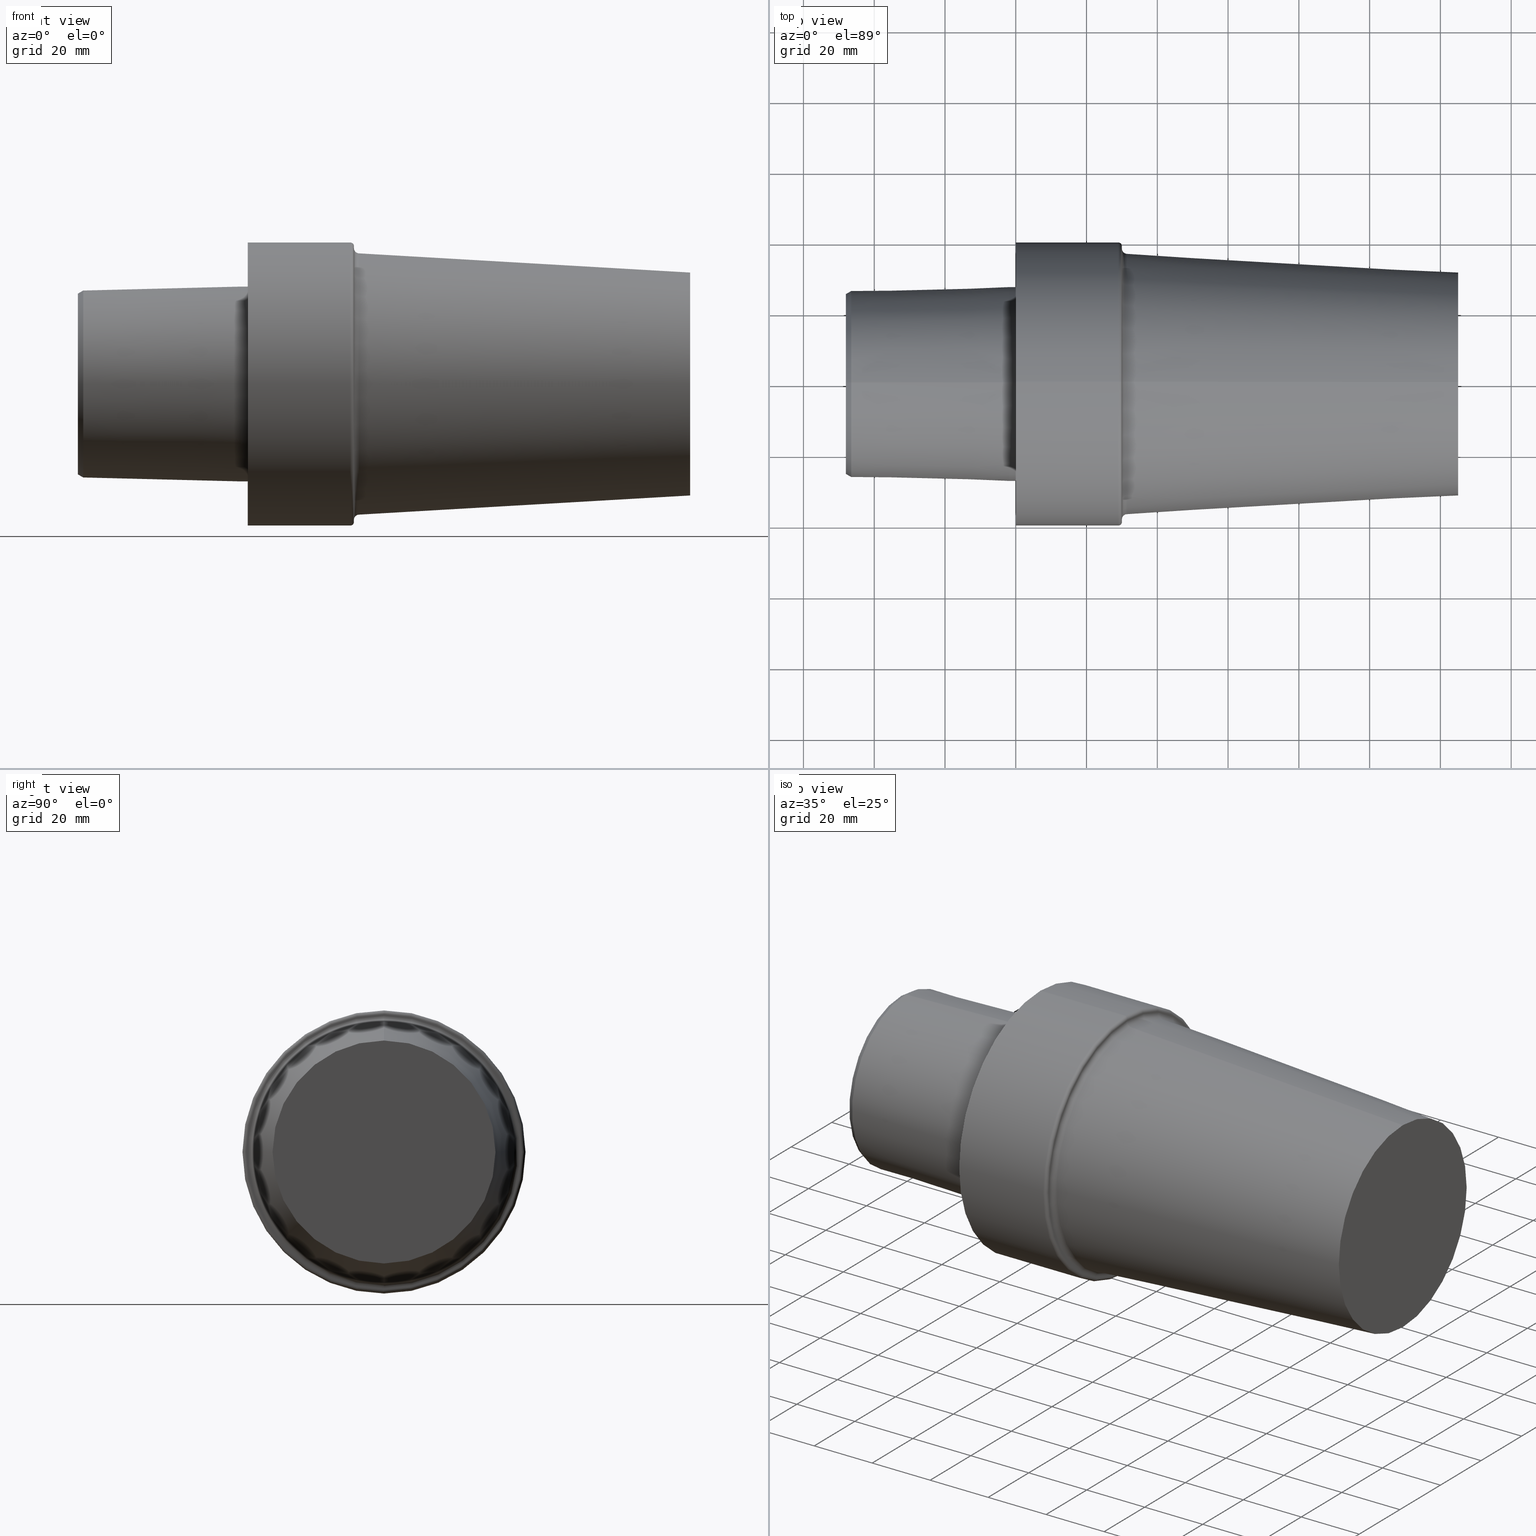
[diagram: canonical four-view strip — front | top / right | iso, engineering-drawing reading convention]
A machine part, canonical four-view strip (front | top / right | iso — engineering-drawing reading convention). The complete STEP part file that produces these views, byte-faithful:
ISO-10303-21;
HEADER;
FILE_DESCRIPTION (( 'STEP AP203' ),
    '1' );
FILE_NAME ('C8-S63-125.stp',
    '2022-03-11T15:37:39',
    ( '' ),
    ( '' ),
    'SwSTEP 2.0',
    'SolidWorks 2021',
    '' );
FILE_SCHEMA (( 'CONFIG_CONTROL_DESIGN' ));
ENDSEC;

DATA;
#1 = AXIS2_PLACEMENT_3D ( 'NONE', #322, #275, #401 ) ;
#2 = VERTEX_POINT ( 'NONE', #54 ) ;
#3 = ORIENTED_EDGE ( 'NONE', *, *, #303, .F. ) ;
#4 = FACE_OUTER_BOUND ( 'NONE', #298, .T. ) ;
#5 = CC_DESIGN_APPROVAL ( #437, ( #46 ) ) ;
#6 = AXIS2_PLACEMENT_3D ( 'NONE', #519, #82, #257 ) ;
#7 = AXIS2_PLACEMENT_3D ( 'NONE', #245, #364, #490 ) ;
#8 = EDGE_LOOP ( 'NONE', ( #496, #131, #201, #406 ) ) ;
#9 = ADVANCED_FACE ( 'NONE', ( #127 ), #147, .T. ) ;
#10 = VERTEX_POINT ( 'NONE', #457 ) ;
#11 = APPROVAL_DATE_TIME ( #308, #437 ) ;
#12 = DIRECTION ( 'NONE',  ( 0.000000000000000000, 0.000000000000000000, 1.000000000000000000 ) ) ;
#13 = ORIENTED_EDGE ( 'NONE', *, *, #124, .T. ) ;
#14 = EDGE_CURVE ( 'NONE', #29, #408, #344, .T. ) ;
#15 = DIRECTION ( 'NONE',  ( 0.000000000000000000, 1.000000000000000000, 1.224646799147353947E-16 ) ) ;
#16 = ORIENTED_EDGE ( 'NONE', *, *, #303, .T. ) ;
#17 = DIRECTION ( 'NONE',  ( -1.000000000000000000, 0.000000000000000000, 0.000000000000000000 ) ) ;
#18 = APPROVAL_ROLE ( '' ) ;
#19 = LOCAL_TIME ( 9, 37, 39.00000000000000000, #521 ) ;
#20 = PERSON_AND_ORGANIZATION ( #493, #210 ) ;
#21 = DIRECTION ( 'NONE',  ( 0.000000000000000000, 0.000000000000000000, -1.000000000000000000 ) ) ;
#22 = EDGE_CURVE ( 'NONE', #408, #29, #477, .T. ) ;
#23 = ADVANCED_FACE ( 'NONE', ( #4 ), #385, .F. ) ;
#24 = TOROIDAL_SURFACE ( 'NONE', #76, 38.41566960232574246, 1.499999998469999873 ) ;
#25 = ADVANCED_FACE ( 'NONE', ( #382 ), #24, .F. ) ;
#26 = CARTESIAN_POINT ( 'NONE',  ( -47.99999995373141815, 0.000000000000000000, -25.54657486860418558 ) ) ;
#27 = AXIS2_PLACEMENT_3D ( 'NONE', #174, #381, #456 ) ;
#28 = FACE_OUTER_BOUND ( 'NONE', #43, .T. ) ;
#29 = VERTEX_POINT ( 'NONE', #104 ) ;
#30 = DIRECTION ( 'NONE',  ( -1.000000000000000000, 0.000000000000000000, 0.000000000000000000 ) ) ;
#31 = CLOSED_SHELL ( 'NONE', ( #23, #47, #154, #186, #197, #523, #228, #96, #25, #184, #358, #326, #471, #9, #212, #494, #214, #220 ) ) ;
#32 = AXIS2_PLACEMENT_3D ( 'NONE', #161, #333, #373 ) ;
#33 = FACE_OUTER_BOUND ( 'NONE', #267, .T. ) ;
#34 = LOCAL_TIME ( 9, 37, 39.00000000000000000, #132 ) ;
#35 = DIRECTION ( 'NONE',  ( 0.000000000000000000, 0.000000000000000000, 1.000000000000000000 ) ) ;
#36 = DIRECTION ( 'NONE',  ( -1.000000000000000000, 0.000000000000000000, 0.000000000000000000 ) ) ;
#37 = DIRECTION ( 'NONE',  ( -1.000000000000000000, 0.000000000000000000, 0.000000000000000000 ) ) ;
#38 = CARTESIAN_POINT ( 'NONE',  ( -47.99999995373141815, 0.000000000000000000, 39.99249995920764889 ) ) ;
#39 = EDGE_LOOP ( 'NONE', ( #510, #179, #158, #74 ) ) ;
#40 = EDGE_CURVE ( 'NONE', #370, #418, #227, .T. ) ;
#41 = DIRECTION ( 'NONE',  ( -1.000000000000000000, 0.000000000000000000, 0.000000000000000000 ) ) ;
#42 = CIRCLE ( 'NONE', #94, 27.52650806192296074 ) ;
#43 = EDGE_LOOP ( 'NONE', ( #421, #71 ) ) ;
#44 = CIRCLE ( 'NONE', #489, 1.499999998470002982 ) ;
#45 = FACE_OUTER_BOUND ( 'NONE', #8, .T. ) ;
#46 = PRODUCT_DEFINITION ( 'UNKNOWN', '', #224, #499 ) ;
#47 = ADVANCED_FACE ( 'NONE', ( #392 ), #261, .T. ) ;
#48 = FACE_OUTER_BOUND ( 'NONE', #209, .T. ) ;
#49 = ORIENTED_EDGE ( 'NONE', *, *, #413, .T. ) ;
#50 = CIRCLE ( 'NONE', #7, 27.52650806192296074 ) ;
#51 = ORIENTED_EDGE ( 'NONE', *, *, #400, .T. ) ;
#52 = APPROVAL_DATE_TIME ( #145, #403 ) ;
#53 = CARTESIAN_POINT ( 'NONE',  ( 124.9999989825000029, 0.000000000000000000, 0.000000000000000000 ) ) ;
#54 = CARTESIAN_POINT ( 'NONE',  ( 28.99999997041999933, 4.897668706494425201E-15, -39.99249995920764889 ) ) ;
#55 = ORIENTED_EDGE ( 'NONE', *, *, #64, .F. ) ;
#56 = PERSON_AND_ORGANIZATION ( #493, #210 ) ;
#57 = ORIENTED_EDGE ( 'NONE', *, *, #144, .T. ) ;
#58 = PERSON_AND_ORGANIZATION_ROLE ( 'creator' ) ;
#59 = AXIS2_PLACEMENT_3D ( 'NONE', #528, #79, #35 ) ;
#60 = COORDINATED_UNIVERSAL_TIME_OFFSET ( 6, 0, .BEHIND. ) ;
#61 = AXIS2_PLACEMENT_3D ( 'NONE', #465, #41, #384 ) ;
#62 = CC_DESIGN_DATE_AND_TIME_ASSIGNMENT ( #431, #223, ( #46 ) ) ;
#63 = CARTESIAN_POINT ( 'NONE',  ( 31.49999996787000001, 0.000000000000000000, 0.000000000000000000 ) ) ;
#64 = EDGE_CURVE ( 'NONE', #87, #445, #360, .T. ) ;
#65 = CIRCLE ( 'NONE', #439, 26.41260027305914804 ) ;
#66 = CALENDAR_DATE ( 2022, 11, 3 ) ;
#67 = FACE_OUTER_BOUND ( 'NONE', #530, .T. ) ;
#68 = DIRECTION ( 'NONE',  ( -1.000000000000000000, 0.000000000000000000, 0.000000000000000000 ) ) ;
#69 = CARTESIAN_POINT ( 'NONE',  ( -1.940694418020491918, 3.371024998973778328E-15, 27.52650806192296074 ) ) ;
#70 = VECTOR ( 'NONE', #417, 1000.000000000000114 ) ;
#71 = ORIENTED_EDGE ( 'NONE', *, *, #14, .F. ) ;
#72 = DIRECTION ( 'NONE',  ( -1.000000000000000000, 0.000000000000000000, 0.000000000000000000 ) ) ;
#73 = CARTESIAN_POINT ( 'NONE',  ( 0.000000000000000000, 0.000000000000000000, 0.000000000000000000 ) ) ;
#74 = ORIENTED_EDGE ( 'NONE', *, *, #40, .F. ) ;
#75 = LINE ( 'NONE', #368, #485 ) ;
#76 = AXIS2_PLACEMENT_3D ( 'NONE', #63, #149, #314 ) ;
#77 = AXIS2_PLACEMENT_3D ( 'NONE', #241, #487, #108 ) ;
#78 = PLANE ( 'NONE',  #77 ) ;
#79 = DIRECTION ( 'NONE',  ( -1.000000000000000000, 0.000000000000000000, 0.000000000000000000 ) ) ;
#80 = EDGE_CURVE ( 'NONE', #380, #2, #135, .T. ) ;
#81 = ORIENTED_EDGE ( 'NONE', *, *, #134, .F. ) ;
#82 = DIRECTION ( 'NONE',  ( -1.000000000000000000, 0.000000000000000000, 0.000000000000000000 ) ) ;
#83 =( LENGTH_UNIT ( ) NAMED_UNIT ( * ) SI_UNIT ( .MILLI., .METRE. ) );
#84 = CIRCLE ( 'NONE', #300, 27.52650806192296074 ) ;
#85 = EDGE_LOOP ( 'NONE', ( #259, #448, #411, #423 ) ) ;
#86 = DIRECTION ( 'NONE',  ( -1.000000000000000000, 0.000000000000000000, 0.000000000000000000 ) ) ;
#87 = VERTEX_POINT ( 'NONE', #318 ) ;
#88 = CARTESIAN_POINT ( 'NONE',  ( 124.9999989825000029, 0.000000000000000000, 0.000000000000000000 ) ) ;
#89 = ORIENTED_EDGE ( 'NONE', *, *, #117, .T. ) ;
#90 = PERSON_AND_ORGANIZATION ( #493, #210 ) ;
#91 = CIRCLE ( 'NONE', #193, 25.54657486860418558 ) ;
#92 = EDGE_CURVE ( 'NONE', #502, #355, #65, .T. ) ;
#93 = AXIS2_PLACEMENT_3D ( 'NONE', #101, #268, #277 ) ;
#94 = AXIS2_PLACEMENT_3D ( 'NONE', #73, #36, #369 ) ;
#95 = ORIENTED_EDGE ( 'NONE', *, *, #414, .T. ) ;
#96 = ADVANCED_FACE ( 'NONE', ( #354, #480 ), #278, .F. ) ;
#97 = DATE_TIME_ROLE ( 'classification_date' ) ;
#98 = DIRECTION ( 'NONE',  ( 1.000000000000000000, 0.000000000000000000, 0.000000000000000000 ) ) ;
#99 = VECTOR ( 'NONE', #187, 1000.000000000000000 ) ;
#100 =( NAMED_UNIT ( * ) SI_UNIT ( $, .STERADIAN. ) SOLID_ANGLE_UNIT ( ) );
#101 = CARTESIAN_POINT ( 'NONE',  ( 29.99999996940000102, 0.000000000000000000, 0.000000000000000000 ) ) ;
#102 = AXIS2_PLACEMENT_3D ( 'NONE', #495, #287, #447 ) ;
#103 = EDGE_CURVE ( 'NONE', #87, #2, #509, .T. ) ;
#104 = CARTESIAN_POINT ( 'NONE',  ( 124.9999989825000029, 4.189405080688302901E-15, -31.49999996787000001 ) ) ;
#105 = CARTESIAN_POINT ( 'NONE',  ( -46.49999995257000052, 0.000000000000000000, 0.000000000000000000 ) ) ;
#106 = DIRECTION ( 'NONE',  ( 0.000000000000000000, 0.000000000000000000, 1.000000000000000000 ) ) ;
#107 = CIRCLE ( 'NONE', #126, 27.52650806192296074 ) ;
#108 = DIRECTION ( 'NONE',  ( 0.000000000000000000, 1.000000000000000000, 0.000000000000000000 ) ) ;
#109 = DIRECTION ( 'NONE',  ( 0.000000000000000000, 0.000000000000000000, 1.000000000000000000 ) ) ;
#110 = APPROVAL_DATE_TIME ( #155, #427 ) ;
#111 = DIRECTION ( 'NONE',  ( -1.000000000000000000, 0.000000000000000000, 0.000000000000000000 ) ) ;
#112 = AXIS2_PLACEMENT_3D ( 'NONE', #165, #167, #338 ) ;
#113 = ORIENTED_EDGE ( 'NONE', *, *, #124, .F. ) ;
#114 = DIRECTION ( 'NONE',  ( 0.000000000000000000, 0.000000000000000000, 1.000000000000000000 ) ) ;
#115 = CARTESIAN_POINT ( 'NONE',  ( 31.41330303795843193, 0.000000000000000000, 36.91817715234346053 ) ) ;
#116 = LINE ( 'NONE', #440, #435 ) ;
#117 = EDGE_CURVE ( 'NONE', #517, #125, #467, .T. ) ;
#118 = AXIS2_PLACEMENT_3D ( 'NONE', #516, #351, #389 ) ;
#119 = EDGE_LOOP ( 'NONE', ( #383, #55 ) ) ;
#120 = FACE_OUTER_BOUND ( 'NONE', #152, .T. ) ;
#121 = CARTESIAN_POINT ( 'NONE',  ( -1.940694418020491918, 3.371024998973778328E-15, -27.52650806192296074 ) ) ;
#122 = DIRECTION ( 'NONE',  ( 0.000000000000000000, 0.000000000000000000, 1.000000000000000000 ) ) ;
#123 = DIRECTION ( 'NONE',  ( -1.000000000000000000, 0.000000000000000000, 0.000000000000000000 ) ) ;
#124 = EDGE_CURVE ( 'NONE', #352, #125, #273, .T. ) ;
#125 = VERTEX_POINT ( 'NONE', #115 ) ;
#126 = AXIS2_PLACEMENT_3D ( 'NONE', #531, #37, #109 ) ;
#127 = FACE_OUTER_BOUND ( 'NONE', #85, .T. ) ;
#128 = DIRECTION ( 'NONE',  ( 0.000000000000000000, 0.000000000000000000, 1.000000000000000000 ) ) ;
#129 = TOROIDAL_SURFACE ( 'NONE', #168, 38.99249996022764719, 0.9999999989799999156 ) ;
#130 = DIRECTION ( 'NONE',  ( -1.000000000000000000, 0.000000000000000000, 0.000000000000000000 ) ) ;
#131 = ORIENTED_EDGE ( 'NONE', *, *, #249, .T. ) ;
#132 = COORDINATED_UNIVERSAL_TIME_OFFSET ( 6, 0, .BEHIND. ) ;
#133 = DIRECTION ( 'NONE',  ( -1.000000000000000000, 0.000000000000000000, 0.000000000000000000 ) ) ;
#134 = EDGE_CURVE ( 'NONE', #514, #297, #50, .T. ) ;
#135 = CIRCLE ( 'NONE', #310, 39.99249995920764889 ) ;
#136 = AXIS2_PLACEMENT_3D ( 'NONE', #359, #15, #180 ) ;
#137 = EDGE_LOOP ( 'NONE', ( #173, #247, #13, #341 ) ) ;
#138 = PERSON_AND_ORGANIZATION_ROLE ( 'design_supplier' ) ;
#139 = CIRCLE ( 'NONE', #474, 38.41566960081601678 ) ;
#140 = CARTESIAN_POINT ( 'NONE',  ( 31.41330303795843193, 0.000000000000000000, 0.000000000000000000 ) ) ;
#141 = APPROVAL_ROLE ( '' ) ;
#142 = DIRECTION ( 'NONE',  ( 0.000000000000000000, 0.000000000000000000, 1.000000000000000000 ) ) ;
#143 = DIRECTION ( 'NONE',  ( 1.000000000000000000, 0.000000000000000000, 0.000000000000000000 ) ) ;
#144 = EDGE_CURVE ( 'NONE', #536, #10, #42, .T. ) ;
#145 = DATE_AND_TIME ( #185, #19 ) ;
#146 = CARTESIAN_POINT ( 'NONE',  ( 28.99999997041999933, 0.000000000000000000, 0.000000000000000000 ) ) ;
#147 = TOROIDAL_SURFACE ( 'NONE', #290, 38.99249996022764719, 0.9999999989799999156 ) ;
#148 = PERSON_AND_ORGANIZATION_ROLE ( 'classification_officer' ) ;
#149 = DIRECTION ( 'NONE',  ( -1.000000000000000000, 0.000000000000000000, 0.000000000000000000 ) ) ;
#150 = DIRECTION ( 'NONE',  ( 0.000000000000000000, 0.000000000000000000, 1.000000000000000000 ) ) ;
#151 = CIRCLE ( 'NONE', #459, 26.41260027305914804 ) ;
#152 = EDGE_LOOP ( 'NONE', ( #57, #51, #81, #361 ) ) ;
#153 = CARTESIAN_POINT ( 'NONE',  ( -46.49999995257000052, 3.302817818564909263E-15, 26.41260027305914804 ) ) ;
#154 = ADVANCED_FACE ( 'NONE', ( #33 ), #281, .T. ) ;
#155 = DATE_AND_TIME ( #66, #266 ) ;
#156 = DIRECTION ( 'NONE',  ( 0.000000000000000000, 0.000000000000000000, 1.000000000000000000 ) ) ;
#157 = APPROVAL_PERSON_ORGANIZATION ( #90, #427, #388 ) ;
#158 = ORIENTED_EDGE ( 'NONE', *, *, #236, .T. ) ;
#159 = CYLINDRICAL_SURFACE ( 'NONE', #234, 27.52650806192296074 ) ;
#160 = EDGE_CURVE ( 'NONE', #445, #380, #419, .T. ) ;
#161 = CARTESIAN_POINT ( 'NONE',  ( 28.99999997041999933, 0.000000000000000000, 38.99249996022764719 ) ) ;
#162 = ORIENTED_EDGE ( 'NONE', *, *, #434, .F. ) ;
#163 = DIRECTION ( 'NONE',  ( 0.000000000000000000, 0.000000000000000000, 1.000000000000000000 ) ) ;
#164 = FACE_OUTER_BOUND ( 'NONE', #458, .T. ) ;
#165 = CARTESIAN_POINT ( 'NONE',  ( -47.99999995373141815, 0.000000000000000000, 0.000000000000000000 ) ) ;
#166 = ORIENTED_EDGE ( 'NONE', *, *, #400, .F. ) ;
#167 = DIRECTION ( 'NONE',  ( -1.000000000000000000, 0.000000000000000000, 0.000000000000000000 ) ) ;
#168 = AXIS2_PLACEMENT_3D ( 'NONE', #460, #252, #128 ) ;
#169 = ORIENTED_EDGE ( 'NONE', *, *, #414, .F. ) ;
#170 = CC_DESIGN_APPROVAL ( #427, ( #432 ) ) ;
#171 = ORIENTED_EDGE ( 'NONE', *, *, #160, .T. ) ;
#172 =( NAMED_UNIT ( * ) PLANE_ANGLE_UNIT ( ) SI_UNIT ( $, .RADIAN. ) );
#173 = ORIENTED_EDGE ( 'NONE', *, *, #532, .F. ) ;
#174 = CARTESIAN_POINT ( 'NONE',  ( -1.940694418020491918, 0.000000000000000000, 0.000000000000000000 ) ) ;
#175 = ORIENTED_EDGE ( 'NONE', *, *, #236, .F. ) ;
#176 = EDGE_CURVE ( 'NONE', #502, #514, #331, .T. ) ;
#177 = COORDINATED_UNIVERSAL_TIME_OFFSET ( 6, 0, .BEHIND. ) ;
#178 = CARTESIAN_POINT ( 'NONE',  ( -1.940694418020491918, 0.000000000000000000, 0.000000000000000000 ) ) ;
#179 = ORIENTED_EDGE ( 'NONE', *, *, #434, .T. ) ;
#180 = DIRECTION ( 'NONE',  ( 0.000000000000000000, -1.224646799147358384E-16, 1.000000000000000000 ) ) ;
#181 = AXIS2_PLACEMENT_3D ( 'NONE', #409, #282, #106 ) ;
#182 = ORIENTED_EDGE ( 'NONE', *, *, #532, .T. ) ;
#183 = APPLICATION_PROTOCOL_DEFINITION ( 'international standard', 'config_control_design', 1994, #520 ) ;
#184 = ADVANCED_FACE ( 'NONE', ( #164 ), #366, .T. ) ;
#185 = CALENDAR_DATE ( 2022, 11, 3 ) ;
#186 = ADVANCED_FACE ( 'NONE', ( #67 ), #229, .T. ) ;
#187 = DIRECTION ( 'NONE',  ( -0.9983283009212045034, 7.078208035069237326E-18, -0.05779795480621317122 ) ) ;
#188 = AXIS2_PLACEMENT_3D ( 'NONE', #269, #433, #143 ) ;
#189 = DIRECTION ( 'NONE',  ( -1.000000000000000000, 0.000000000000000000, 0.000000000000000000 ) ) ;
#190 = CARTESIAN_POINT ( 'NONE',  ( 31.49999996787000001, 0.000000000000000000, 38.41566960232574246 ) ) ;
#191 = ADVANCED_BREP_SHAPE_REPRESENTATION ( 'C8-S63-125', ( #395, #188 ), #430 ) ;
#192 = CARTESIAN_POINT ( 'NONE',  ( 28.99999997041999933, 0.000000000000000000, 0.000000000000000000 ) ) ;
#193 = AXIS2_PLACEMENT_3D ( 'NONE', #325, #30, #292 ) ;
#194 = CIRCLE ( 'NONE', #279, 38.99249996022764719 ) ;
#195 = ORIENTED_EDGE ( 'NONE', *, *, #92, .F. ) ;
#196 = CARTESIAN_POINT ( 'NONE',  ( 28.99999997041999933, 0.000000000000000000, 39.99249995920764889 ) ) ;
#197 = ADVANCED_FACE ( 'NONE', ( #527, #284 ), #78, .F. ) ;
#198 = CARTESIAN_POINT ( 'NONE',  ( -46.49999995257000052, 0.000000000000000000, -26.41260027305914804 ) ) ;
#199 = CARTESIAN_POINT ( 'NONE',  ( -1.940694418020491918, 0.000000000000000000, 0.000000000000000000 ) ) ;
#200 = CARTESIAN_POINT ( 'NONE',  ( -46.49999995257000052, 3.234610638156039409E-15, 26.41260027305914804 ) ) ;
#201 = ORIENTED_EDGE ( 'NONE', *, *, #92, .T. ) ;
#202 = FACE_OUTER_BOUND ( 'NONE', #211, .T. ) ;
#203 = ORIENTED_EDGE ( 'NONE', *, *, #386, .F. ) ;
#204 = LINE ( 'NONE', #200, #315 ) ;
#205 = VECTOR ( 'NONE', #296, 1000.000000000000000 ) ;
#206 = DIRECTION ( 'NONE',  ( 0.000000000000000000, 0.000000000000000000, 1.000000000000000000 ) ) ;
#207 = ORIENTED_EDGE ( 'NONE', *, *, #377, .T. ) ;
#208 = DIRECTION ( 'NONE',  ( 0.000000000000000000, 1.000000000000000000, 0.000000000000000000 ) ) ;
#209 = EDGE_LOOP ( 'NONE', ( #237, #378, #3, #175 ) ) ;
#210 = ORGANIZATION ( 'UNSPECIFIED', 'UNSPECIFIED', '' ) ;
#211 = EDGE_LOOP ( 'NONE', ( #195, #387, #505, #305 ) ) ;
#212 = ADVANCED_FACE ( 'NONE', ( #48 ), #248, .T. ) ;
#213 = AXIS2_PLACEMENT_3D ( 'NONE', #498, #330, #367 ) ;
#214 = ADVANCED_FACE ( 'NONE', ( #202 ), #422, .T. ) ;
#215 = APPROVAL_STATUS ( 'not_yet_approved' ) ;
#216 = DIRECTION ( 'NONE',  ( -1.000000000000000000, 0.000000000000000000, 0.000000000000000000 ) ) ;
#217 = ORIENTED_EDGE ( 'NONE', *, *, #513, .T. ) ;
#218 = DIRECTION ( 'NONE',  ( 0.000000000000000000, 0.000000000000000000, 1.000000000000000000 ) ) ;
#219 = ORIENTED_EDGE ( 'NONE', *, *, #249, .F. ) ;
#220 = ADVANCED_FACE ( 'NONE', ( #45 ), #391, .T. ) ;
#221 = CALENDAR_DATE ( 2022, 11, 3 ) ;
#222 = EDGE_CURVE ( 'NONE', #536, #514, #307, .T. ) ;
#223 = DATE_TIME_ROLE ( 'creation_date' ) ;
#224 = PRODUCT_DEFINITION_FORMATION_WITH_SPECIFIED_SOURCE ( 'ANY', '', #482, .NOT_KNOWN. ) ;
#225 = EDGE_LOOP ( 'NONE', ( #469, #533, #171, #162 ) ) ;
#226 = CARTESIAN_POINT ( 'NONE',  ( -47.99999995373141815, 0.000000000000000000, 0.000000000000000000 ) ) ;
#227 = CIRCLE ( 'NONE', #1, 39.99249995920764889 ) ;
#228 = ADVANCED_FACE ( 'NONE', ( #506 ), #129, .T. ) ;
#229 = CYLINDRICAL_SURFACE ( 'NONE', #102, 27.52650806192296074 ) ;
#230 = LINE ( 'NONE', #198, #476 ) ;
#231 = VECTOR ( 'NONE', #123, 1000.000000000000000 ) ;
#232 = EDGE_LOOP ( 'NONE', ( #219, #169, #251, #293 ) ) ;
#233 = FACE_OUTER_BOUND ( 'NONE', #349, .T. ) ;
#234 = AXIS2_PLACEMENT_3D ( 'NONE', #226, #402, #286 ) ;
#235 = UNCERTAINTY_MEASURE_WITH_UNIT (LENGTH_MEASURE( 1.000000000000000082E-05 ), #83, 'distance_accuracy_value', 'NONE');
#236 = EDGE_CURVE ( 'NONE', #380, #418, #340, .T. ) ;
#237 = ORIENTED_EDGE ( 'NONE', *, *, #80, .T. ) ;
#238 = CARTESIAN_POINT ( 'NONE',  ( 31.41330303795843193, 4.521172747997237922E-15, -36.91817715234346053 ) ) ;
#239 = AXIS2_PLACEMENT_3D ( 'NONE', #88, #86, #206 ) ;
#240 = AXIS2_PLACEMENT_3D ( 'NONE', #190, #328, #451 ) ;
#241 = CARTESIAN_POINT ( 'NONE',  ( 0.000000000000000000, 39.99249995920764889, 0.000000000000000000 ) ) ;
#242 = EDGE_LOOP ( 'NONE', ( #16, #491 ) ) ;
#243 = DIRECTION ( 'NONE',  ( -0.9983283009212045034, 0.000000000000000000, 0.05779795480621317122 ) ) ;
#244 = AXIS2_PLACEMENT_3D ( 'NONE', #365, #453, #332 ) ;
#245 = CARTESIAN_POINT ( 'NONE',  ( -1.940694418020491918, 0.000000000000000000, 0.000000000000000000 ) ) ;
#246 = CC_DESIGN_PERSON_AND_ORGANIZATION_ASSIGNMENT ( #317, #138, ( #224 ) ) ;
#247 = ORIENTED_EDGE ( 'NONE', *, *, #377, .F. ) ;
#248 = CYLINDRICAL_SURFACE ( 'NONE', #61, 39.99249995920764889 ) ;
#249 = EDGE_CURVE ( 'NONE', #428, #502, #204, .T. ) ;
#250 = CARTESIAN_POINT ( 'NONE',  ( 0.000000000000000000, 0.000000000000000000, 27.52650806192296074 ) ) ;
#251 = ORIENTED_EDGE ( 'NONE', *, *, #429, .T. ) ;
#252 = DIRECTION ( 'NONE',  ( -1.000000000000000000, 0.000000000000000000, 0.000000000000000000 ) ) ;
#253 = CIRCLE ( 'NONE', #118, 39.99249995920764889 ) ;
#254 = ORIENTED_EDGE ( 'NONE', *, *, #484, .F. ) ;
#255 = ORIENTED_EDGE ( 'NONE', *, *, #258, .T. ) ;
#256 = APPLICATION_PROTOCOL_DEFINITION ( 'international standard', 'config_control_design', 1994, #486 ) ;
#257 = DIRECTION ( 'NONE',  ( 0.000000000000000000, 0.000000000000000000, 1.000000000000000000 ) ) ;
#258 = EDGE_CURVE ( 'NONE', #355, #297, #376, .T. ) ;
#259 = ORIENTED_EDGE ( 'NONE', *, *, #397, .T. ) ;
#260 = CARTESIAN_POINT ( 'NONE',  ( -46.49999995257000052, 0.000000000000000000, -26.41260027305914804 ) ) ;
#261 = CONICAL_SURFACE ( 'NONE', #336, 26.41260027305914804, 0.5235987755982987046 ) ;
#262 = AXIS2_PLACEMENT_3D ( 'NONE', #362, #524, #142 ) ;
#263 = MECHANICAL_CONTEXT ( 'NONE', #486, 'mechanical' ) ;
#264 = PERSON_AND_ORGANIZATION ( #493, #210 ) ;
#265 = ORIENTED_EDGE ( 'NONE', *, *, #343, .F. ) ;
#266 = LOCAL_TIME ( 9, 37, 39.00000000000000000, #177 ) ;
#267 = EDGE_LOOP ( 'NONE', ( #302, #329, #255, #425 ) ) ;
#268 = DIRECTION ( 'NONE',  ( -1.000000000000000000, 0.000000000000000000, 0.000000000000000000 ) ) ;
#269 = CARTESIAN_POINT ( 'NONE',  ( 0.000000000000000000, 0.000000000000000000, 0.000000000000000000 ) ) ;
#270 = PERSON_AND_ORGANIZATION_ROLE ( 'design_owner' ) ;
#271 = AXIS2_PLACEMENT_3D ( 'NONE', #192, #189, #335 ) ;
#272 = DIRECTION ( 'NONE',  ( -1.000000000000000000, 0.000000000000000000, 0.000000000000000000 ) ) ;
#273 = CIRCLE ( 'NONE', #240, 1.499999998470002982 ) ;
#274 = SECURITY_CLASSIFICATION_LEVEL ( 'unclassified' ) ;
#275 = DIRECTION ( 'NONE',  ( -1.000000000000000000, 0.000000000000000000, 0.000000000000000000 ) ) ;
#276 = CC_DESIGN_PERSON_AND_ORGANIZATION_ASSIGNMENT ( #56, #436, ( #224 ) ) ;
#277 = DIRECTION ( 'NONE',  ( 0.000000000000000000, 0.000000000000000000, 1.000000000000000000 ) ) ;
#278 = PLANE ( 'NONE',  #262 ) ;
#279 = AXIS2_PLACEMENT_3D ( 'NONE', #412, #68, #150 ) ;
#280 = CARTESIAN_POINT ( 'NONE',  ( 29.99999996940000102, 4.704562681466597716E-15, -38.41566960157086186 ) ) ;
#281 = CONICAL_SURFACE ( 'NONE', #353, 27.52650806192296074, 0.02499311489546479637 ) ;
#282 = DIRECTION ( 'NONE',  ( -1.000000000000000000, 0.000000000000000000, 0.000000000000000000 ) ) ;
#283 = EDGE_CURVE ( 'NONE', #428, #512, #444, .T. ) ;
#284 = FACE_OUTER_BOUND ( 'NONE', #242, .T. ) ;
#285 = ORIENTED_EDGE ( 'NONE', *, *, #117, .F. ) ;
#286 = DIRECTION ( 'NONE',  ( 0.000000000000000000, 0.000000000000000000, 1.000000000000000000 ) ) ;
#287 = DIRECTION ( 'NONE',  ( -1.000000000000000000, 0.000000000000000000, 0.000000000000000000 ) ) ;
#288 = ORIENTED_EDGE ( 'NONE', *, *, #222, .T. ) ;
#289 = CARTESIAN_POINT ( 'NONE',  ( 124.9999989825000029, 0.000000000000000000, 31.49999996787000001 ) ) ;
#290 = AXIS2_PLACEMENT_3D ( 'NONE', #342, #130, #393 ) ;
#291 = VECTOR ( 'NONE', #538, 1000.000000000000114 ) ;
#292 = DIRECTION ( 'NONE',  ( 0.000000000000000000, 0.000000000000000000, 1.000000000000000000 ) ) ;
#293 = ORIENTED_EDGE ( 'NONE', *, *, #372, .T. ) ;
#294 = DIRECTION ( 'NONE',  ( 0.000000000000000000, -1.224646799147350249E-16, 1.000000000000000000 ) ) ;
#295 = EDGE_CURVE ( 'NONE', #2, #370, #504, .T. ) ;
#296 = DIRECTION ( 'NONE',  ( -1.000000000000000000, 0.000000000000000000, 0.000000000000000000 ) ) ;
#297 = VERTEX_POINT ( 'NONE', #121 ) ;
#298 = EDGE_LOOP ( 'NONE', ( #95, #334 ) ) ;
#299 = APPROVAL_PERSON_ORGANIZATION ( #357, #437, #141 ) ;
#300 = AXIS2_PLACEMENT_3D ( 'NONE', #178, #133, #468 ) ;
#301 = DIRECTION ( 'NONE',  ( 0.000000000000000000, 1.000000000000000000, 1.224646799147351975E-16 ) ) ;
#302 = ORIENTED_EDGE ( 'NONE', *, *, #176, .F. ) ;
#303 = EDGE_CURVE ( 'NONE', #418, #370, #253, .T. ) ;
#304 = CARTESIAN_POINT ( 'NONE',  ( -46.49999995257000052, 0.000000000000000000, 0.000000000000000000 ) ) ;
#305 = ORIENTED_EDGE ( 'NONE', *, *, #258, .F. ) ;
#306 = ORIENTED_EDGE ( 'NONE', *, *, #413, .F. ) ;
#307 = LINE ( 'NONE', #511, #405 ) ;
#308 = DATE_AND_TIME ( #515, #34 ) ;
#309 = CARTESIAN_POINT ( 'NONE',  ( 29.99999996940000102, 0.000000000000000000, 38.41566960157086186 ) ) ;
#310 = AXIS2_PLACEMENT_3D ( 'NONE', #146, #17, #481 ) ;
#311 = CC_DESIGN_PERSON_AND_ORGANIZATION_ASSIGNMENT ( #264, #58, ( #46 ) ) ;
#312 = EDGE_LOOP ( 'NONE', ( #473, #217, #347, #203 ) ) ;
#313 = COORDINATED_UNIVERSAL_TIME_OFFSET ( 6, 0, .BEHIND. ) ;
#314 = DIRECTION ( 'NONE',  ( 0.000000000000000000, 0.000000000000000000, 1.000000000000000000 ) ) ;
#315 = VECTOR ( 'NONE', #374, 1000.000000000000000 ) ;
#316 = DIRECTION ( 'NONE',  ( -1.000000000000000000, 0.000000000000000000, 0.000000000000000000 ) ) ;
#317 = PERSON_AND_ORGANIZATION ( #493, #210 ) ;
#318 = CARTESIAN_POINT ( 'NONE',  ( 29.99999996940000102, 4.836436366599519633E-15, -38.99249996022764719 ) ) ;
#319 = AXIS2_PLACEMENT_3D ( 'NONE', #508, #461, #208 ) ;
#320 = AXIS2_PLACEMENT_3D ( 'NONE', #438, #111, #156 ) ;
#321 = PRODUCT_DEFINITION_SHAPE ( 'NONE', 'NONE',  #46 ) ;
#322 = CARTESIAN_POINT ( 'NONE',  ( 0.000000000000000000, 0.000000000000000000, 0.000000000000000000 ) ) ;
#323 = CYLINDRICAL_SURFACE ( 'NONE', #420, 39.99249995920764889 ) ;
#324 = PRODUCT_RELATED_PRODUCT_CATEGORY ( 'detail', '', ( #482 ) ) ;
#325 = CARTESIAN_POINT ( 'NONE',  ( -47.99999995373141815, 0.000000000000000000, 0.000000000000000000 ) ) ;
#326 = ADVANCED_FACE ( 'NONE', ( #426 ), #327, .T. ) ;
#327 = CONICAL_SURFACE ( 'NONE', #450, 31.49999996787000001, 0.05783018328704118971 ) ;
#328 = DIRECTION ( 'NONE',  ( 0.000000000000000000, -1.000000000000000000, 0.000000000000000000 ) ) ;
#329 = ORIENTED_EDGE ( 'NONE', *, *, #372, .F. ) ;
#330 = DIRECTION ( 'NONE',  ( -1.000000000000000000, 0.000000000000000000, 0.000000000000000000 ) ) ;
#331 = LINE ( 'NONE', #69, #291 ) ;
#332 = DIRECTION ( 'NONE',  ( 0.000000000000000000, 0.000000000000000000, 1.000000000000000000 ) ) ;
#333 = DIRECTION ( 'NONE',  ( 0.000000000000000000, -1.000000000000000000, 0.000000000000000000 ) ) ;
#334 = ORIENTED_EDGE ( 'NONE', *, *, #283, .T. ) ;
#335 = DIRECTION ( 'NONE',  ( 0.000000000000000000, 0.000000000000000000, 1.000000000000000000 ) ) ;
#336 = AXIS2_PLACEMENT_3D ( 'NONE', #105, #98, #21 ) ;
#337 = AXIS2_PLACEMENT_3D ( 'NONE', #140, #316, #475 ) ;
#338 = DIRECTION ( 'NONE',  ( 0.000000000000000000, 0.000000000000000000, 1.000000000000000000 ) ) ;
#339 = AXIS2_PLACEMENT_3D ( 'NONE', #304, #415, #348 ) ;
#340 = LINE ( 'NONE', #38, #231 ) ;
#341 = ORIENTED_EDGE ( 'NONE', *, *, #441, .T. ) ;
#342 = CARTESIAN_POINT ( 'NONE',  ( 28.99999997041999933, 0.000000000000000000, 0.000000000000000000 ) ) ;
#343 = EDGE_CURVE ( 'NONE', #297, #514, #84, .T. ) ;
#344 = CIRCLE ( 'NONE', #239, 31.49999996787000001 ) ;
#345 = DIRECTION ( 'NONE',  ( -1.000000000000000000, 0.000000000000000000, 0.000000000000000000 ) ) ;
#346 = TOROIDAL_SURFACE ( 'NONE', #213, 38.41566960232574246, 1.499999998469999873 ) ;
#347 = ORIENTED_EDGE ( 'NONE', *, *, #441, .F. ) ;
#348 = DIRECTION ( 'NONE',  ( 0.000000000000000000, 0.000000000000000000, -1.000000000000000000 ) ) ;
#349 = EDGE_LOOP ( 'NONE', ( #254, #182, #89, #113 ) ) ;
#350 = APPROVAL_STATUS ( 'not_yet_approved' ) ;
#351 = DIRECTION ( 'NONE',  ( -1.000000000000000000, 0.000000000000000000, 0.000000000000000000 ) ) ;
#352 = VERTEX_POINT ( 'NONE', #309 ) ;
#353 = AXIS2_PLACEMENT_3D ( 'NONE', #199, #535, #442 ) ;
#354 = FACE_BOUND ( 'NONE', #466, .T. ) ;
#355 = VERTEX_POINT ( 'NONE', #260 ) ;
#356 = CARTESIAN_POINT ( 'NONE',  ( -46.49999995257000052, 0.000000000000000000, 0.000000000000000000 ) ) ;
#357 = PERSON_AND_ORGANIZATION ( #493, #210 ) ;
#358 = ADVANCED_FACE ( 'NONE', ( #28 ), #449, .F. ) ;
#359 = CARTESIAN_POINT ( 'NONE',  ( 28.99999997041999933, 4.775204026704606177E-15, -38.99249996022764719 ) ) ;
#360 = CIRCLE ( 'NONE', #93, 38.99249996022764719 ) ;
#361 = ORIENTED_EDGE ( 'NONE', *, *, #222, .F. ) ;
#362 = CARTESIAN_POINT ( 'NONE',  ( 29.99999996940000102, 38.41566960081601678, 0.000000000000000000 ) ) ;
#363 = CARTESIAN_POINT ( 'NONE',  ( -1.940694418020491918, 0.000000000000000000, 27.52650806192296074 ) ) ;
#364 = DIRECTION ( 'NONE',  ( -1.000000000000000000, 0.000000000000000000, 0.000000000000000000 ) ) ;
#365 = CARTESIAN_POINT ( 'NONE',  ( 31.41330303795843193, 0.000000000000000000, 0.000000000000000000 ) ) ;
#366 = CONICAL_SURFACE ( 'NONE', #320, 31.49999996787000001, 0.05783018328704118971 ) ;
#367 = DIRECTION ( 'NONE',  ( 0.000000000000000000, 0.000000000000000000, 1.000000000000000000 ) ) ;
#368 = CARTESIAN_POINT ( 'NONE',  ( -47.99999995373141815, 3.371024998973778328E-15, -27.52650806192296074 ) ) ;
#369 = DIRECTION ( 'NONE',  ( 0.000000000000000000, 0.000000000000000000, 1.000000000000000000 ) ) ;
#370 = VERTEX_POINT ( 'NONE', #371 ) ;
#371 = CARTESIAN_POINT ( 'NONE',  ( 0.000000000000000000, 4.897668706494433089E-15, -39.99249995920764889 ) ) ;
#372 = EDGE_CURVE ( 'NONE', #355, #502, #151, .T. ) ;
#373 = DIRECTION ( 'NONE',  ( 0.000000000000000000, 0.000000000000000000, -1.000000000000000000 ) ) ;
#374 = DIRECTION ( 'NONE',  ( 0.8660254037844387076, 6.123233995736768501E-17, 0.4999999999999998890 ) ) ;
#375 = VERTEX_POINT ( 'NONE', #280 ) ;
#376 = LINE ( 'NONE', #539, #70 ) ;
#377 = EDGE_CURVE ( 'NONE', #352, #375, #529, .T. ) ;
#378 = ORIENTED_EDGE ( 'NONE', *, *, #295, .T. ) ;
#379 = ORIENTED_EDGE ( 'NONE', *, *, #14, .T. ) ;
#380 = VERTEX_POINT ( 'NONE', #196 ) ;
#381 = DIRECTION ( 'NONE',  ( 1.000000000000000000, 0.000000000000000000, 0.000000000000000000 ) ) ;
#382 = FACE_OUTER_BOUND ( 'NONE', #137, .T. ) ;
#383 = ORIENTED_EDGE ( 'NONE', *, *, #397, .F. ) ;
#384 = DIRECTION ( 'NONE',  ( 0.000000000000000000, 0.000000000000000000, 1.000000000000000000 ) ) ;
#385 = PLANE ( 'NONE',  #319 ) ;
#386 = EDGE_CURVE ( 'NONE', #408, #125, #116, .T. ) ;
#387 = ORIENTED_EDGE ( 'NONE', *, *, #176, .T. ) ;
#388 = APPROVAL_ROLE ( '' ) ;
#389 = DIRECTION ( 'NONE',  ( 0.000000000000000000, 0.000000000000000000, 1.000000000000000000 ) ) ;
#390 = CC_DESIGN_APPROVAL ( #403, ( #224 ) ) ;
#391 = CONICAL_SURFACE ( 'NONE', #339, 26.41260027305914804, 0.5235987755982987046 ) ;
#392 = FACE_OUTER_BOUND ( 'NONE', #232, .T. ) ;
#393 = DIRECTION ( 'NONE',  ( 0.000000000000000000, 0.000000000000000000, 1.000000000000000000 ) ) ;
#394 = ORIENTED_EDGE ( 'NONE', *, *, #513, .F. ) ;
#395 = MANIFOLD_SOLID_BREP ( 'Scale1', #31 ) ;
#396 = APPROVAL_STATUS ( 'not_yet_approved' ) ;
#397 = EDGE_CURVE ( 'NONE', #445, #87, #194, .T. ) ;
#398 = LOCAL_TIME ( 9, 37, 39.00000000000000000, #313 ) ;
#399 = LOCAL_TIME ( 9, 37, 39.00000000000000000, #60 ) ;
#400 = EDGE_CURVE ( 'NONE', #10, #297, #75, .T. ) ;
#401 = DIRECTION ( 'NONE',  ( 0.000000000000000000, 0.000000000000000000, 1.000000000000000000 ) ) ;
#402 = DIRECTION ( 'NONE',  ( -1.000000000000000000, 0.000000000000000000, 0.000000000000000000 ) ) ;
#403 = APPROVAL ( #396, 'UNSPECIFIED' ) ;
#404 = DIRECTION ( 'NONE',  ( 0.8660254037844387076, 0.000000000000000000, -0.4999999999999998890 ) ) ;
#405 = VECTOR ( 'NONE', #455, 1000.000000000000000 ) ;
#406 = ORIENTED_EDGE ( 'NONE', *, *, #429, .F. ) ;
#407 = DIRECTION ( 'NONE',  ( -1.000000000000000000, 0.000000000000000000, 0.000000000000000000 ) ) ;
#408 = VERTEX_POINT ( 'NONE', #289 ) ;
#409 = CARTESIAN_POINT ( 'NONE',  ( 124.9999989825000029, 0.000000000000000000, 0.000000000000000000 ) ) ;
#410 = SHAPE_DEFINITION_REPRESENTATION ( #321, #191 ) ;
#411 = ORIENTED_EDGE ( 'NONE', *, *, #80, .F. ) ;
#412 = CARTESIAN_POINT ( 'NONE',  ( 29.99999996940000102, 0.000000000000000000, 0.000000000000000000 ) ) ;
#413 = EDGE_CURVE ( 'NONE', #10, #536, #107, .T. ) ;
#414 = EDGE_CURVE ( 'NONE', #512, #428, #91, .T. ) ;
#415 = DIRECTION ( 'NONE',  ( 1.000000000000000000, 0.000000000000000000, 0.000000000000000000 ) ) ;
#416 = ORIENTED_EDGE ( 'NONE', *, *, #144, .F. ) ;
#417 = DIRECTION ( 'NONE',  ( 0.9996876883616916398, 0.000000000000000000, -0.02499051296106804404 ) ) ;
#418 = VERTEX_POINT ( 'NONE', #534 ) ;
#419 = CIRCLE ( 'NONE', #32, 0.9999999989799973621 ) ;
#420 = AXIS2_PLACEMENT_3D ( 'NONE', #503, #345, #122 ) ;
#421 = ORIENTED_EDGE ( 'NONE', *, *, #22, .F. ) ;
#422 = CONICAL_SURFACE ( 'NONE', #27, 27.52650806192296074, 0.02499311489546479637 ) ;
#423 = ORIENTED_EDGE ( 'NONE', *, *, #160, .F. ) ;
#424 = ORIENTED_EDGE ( 'NONE', *, *, #484, .T. ) ;
#425 = ORIENTED_EDGE ( 'NONE', *, *, #343, .T. ) ;
#426 = FACE_OUTER_BOUND ( 'NONE', #312, .T. ) ;
#427 = APPROVAL ( #215, 'UNSPECIFIED' ) ;
#428 = VERTEX_POINT ( 'NONE', #488 ) ;
#429 = EDGE_CURVE ( 'NONE', #512, #355, #230, .T. ) ;
#430 =( GEOMETRIC_REPRESENTATION_CONTEXT ( 3 ) GLOBAL_UNCERTAINTY_ASSIGNED_CONTEXT ( ( #235 ) ) GLOBAL_UNIT_ASSIGNED_CONTEXT ( ( #83, #172, #100 ) ) REPRESENTATION_CONTEXT ( 'NONE', 'WORKASPACE' ) );
#431 = DATE_AND_TIME ( #221, #399 ) ;
#432 = SECURITY_CLASSIFICATION ( '', '', #274 ) ;
#433 = DIRECTION ( 'NONE',  ( 0.000000000000000000, 0.000000000000000000, 1.000000000000000000 ) ) ;
#434 = EDGE_CURVE ( 'NONE', #2, #380, #507, .T. ) ;
#435 = VECTOR ( 'NONE', #243, 1000.000000000000000 ) ;
#436 = PERSON_AND_ORGANIZATION_ROLE ( 'creator' ) ;
#437 = APPROVAL ( #350, 'UNSPECIFIED' ) ;
#438 = CARTESIAN_POINT ( 'NONE',  ( 124.9999989825000029, 0.000000000000000000, 0.000000000000000000 ) ) ;
#439 = AXIS2_PLACEMENT_3D ( 'NONE', #356, #272, #218 ) ;
#440 = CARTESIAN_POINT ( 'NONE',  ( 124.9999989825000029, 0.000000000000000000, 31.49999996787000001 ) ) ;
#441 = EDGE_CURVE ( 'NONE', #125, #517, #479, .T. ) ;
#442 = DIRECTION ( 'NONE',  ( 0.000000000000000000, 0.000000000000000000, -1.000000000000000000 ) ) ;
#443 = CARTESIAN_POINT ( 'NONE',  ( 29.99999996940000102, 0.000000000000000000, 38.99249996022764719 ) ) ;
#444 = CIRCLE ( 'NONE', #112, 25.54657486860418558 ) ;
#445 = VERTEX_POINT ( 'NONE', #443 ) ;
#446 = CARTESIAN_POINT ( 'NONE',  ( 124.9999989825000029, 3.857637413379370248E-15, -31.49999996787000001 ) ) ;
#447 = DIRECTION ( 'NONE',  ( 0.000000000000000000, 0.000000000000000000, 1.000000000000000000 ) ) ;
#448 = ORIENTED_EDGE ( 'NONE', *, *, #103, .T. ) ;
#449 = PLANE ( 'NONE',  #181 ) ;
#450 = AXIS2_PLACEMENT_3D ( 'NONE', #53, #216, #12 ) ;
#451 = DIRECTION ( 'NONE',  ( 0.000000000000000000, 0.000000000000000000, -1.000000000000000000 ) ) ;
#452 = EDGE_LOOP ( 'NONE', ( #416, #306 ) ) ;
#453 = DIRECTION ( 'NONE',  ( -1.000000000000000000, 0.000000000000000000, 0.000000000000000000 ) ) ;
#454 = CC_DESIGN_SECURITY_CLASSIFICATION ( #432, ( #224 ) ) ;
#455 = DIRECTION ( 'NONE',  ( -1.000000000000000000, 0.000000000000000000, 0.000000000000000000 ) ) ;
#456 = DIRECTION ( 'NONE',  ( 0.000000000000000000, 0.000000000000000000, -1.000000000000000000 ) ) ;
#457 = CARTESIAN_POINT ( 'NONE',  ( 0.000000000000000000, 3.371024998973778328E-15, -27.52650806192296074 ) ) ;
#458 = EDGE_LOOP ( 'NONE', ( #394, #379, #463, #285 ) ) ;
#459 = AXIS2_PLACEMENT_3D ( 'NONE', #497, #72, #163 ) ;
#460 = CARTESIAN_POINT ( 'NONE',  ( 28.99999997041999933, 0.000000000000000000, 0.000000000000000000 ) ) ;
#461 = DIRECTION ( 'NONE',  ( 1.000000000000000000, 0.000000000000000000, 0.000000000000000000 ) ) ;
#462 = CARTESIAN_POINT ( 'NONE',  ( 31.49999996787000001, 4.704562681559045903E-15, -38.41566960232574246 ) ) ;
#463 = ORIENTED_EDGE ( 'NONE', *, *, #386, .T. ) ;
#464 = CALENDAR_DATE ( 2022, 11, 3 ) ;
#465 = CARTESIAN_POINT ( 'NONE',  ( -47.99999995373141815, 0.000000000000000000, 0.000000000000000000 ) ) ;
#466 = EDGE_LOOP ( 'NONE', ( #207, #424 ) ) ;
#467 = CIRCLE ( 'NONE', #337, 36.91817715234346053 ) ;
#468 = DIRECTION ( 'NONE',  ( 0.000000000000000000, 0.000000000000000000, 1.000000000000000000 ) ) ;
#469 = ORIENTED_EDGE ( 'NONE', *, *, #103, .F. ) ;
#470 = DATE_AND_TIME ( #464, #398 ) ;
#471 = ADVANCED_FACE ( 'NONE', ( #233 ), #346, .F. ) ;
#472 = PERSON_AND_ORGANIZATION ( #493, #210 ) ;
#473 = ORIENTED_EDGE ( 'NONE', *, *, #22, .T. ) ;
#474 = AXIS2_PLACEMENT_3D ( 'NONE', #537, #407, #114 ) ;
#475 = DIRECTION ( 'NONE',  ( 0.000000000000000000, 0.000000000000000000, 1.000000000000000000 ) ) ;
#476 = VECTOR ( 'NONE', #404, 1000.000000000000000 ) ;
#477 = CIRCLE ( 'NONE', #6, 31.49999996787000001 ) ;
#478 = PERSON_AND_ORGANIZATION ( #493, #210 ) ;
#479 = CIRCLE ( 'NONE', #244, 36.91817715234346053 ) ;
#480 = FACE_OUTER_BOUND ( 'NONE', #119, .T. ) ;
#481 = DIRECTION ( 'NONE',  ( 0.000000000000000000, 0.000000000000000000, 1.000000000000000000 ) ) ;
#482 = PRODUCT ( 'C8-S63-125', 'C8-S63-125', '', ( #263 ) ) ;
#483 = DIRECTION ( 'NONE',  ( -1.000000000000000000, 0.000000000000000000, 0.000000000000000000 ) ) ;
#484 = EDGE_CURVE ( 'NONE', #375, #352, #139, .T. ) ;
#485 = VECTOR ( 'NONE', #483, 1000.000000000000000 ) ;
#486 = APPLICATION_CONTEXT ( 'configuration controlled 3d designs of mechanical parts and assemblies' ) ;
#487 = DIRECTION ( 'NONE',  ( 1.000000000000000000, 0.000000000000000000, 0.000000000000000000 ) ) ;
#488 = CARTESIAN_POINT ( 'NONE',  ( -47.99999995373141815, 3.181581876178735270E-15, 25.54657486860418558 ) ) ;
#489 = AXIS2_PLACEMENT_3D ( 'NONE', #462, #301, #294 ) ;
#490 = DIRECTION ( 'NONE',  ( 0.000000000000000000, 0.000000000000000000, 1.000000000000000000 ) ) ;
#491 = ORIENTED_EDGE ( 'NONE', *, *, #40, .T. ) ;
#492 = LINE ( 'NONE', #446, #99 ) ;
#493 = PERSON ( 'UNSPECIFIED', 'UNSPECIFIED', 'UNSPECIFIED', ('UNSPECIFIED'), ('UNSPECIFIED'), ('UNSPECIFIED') ) ;
#494 = ADVANCED_FACE ( 'NONE', ( #120 ), #159, .T. ) ;
#495 = CARTESIAN_POINT ( 'NONE',  ( -47.99999995373141815, 0.000000000000000000, 0.000000000000000000 ) ) ;
#496 = ORIENTED_EDGE ( 'NONE', *, *, #283, .F. ) ;
#497 = CARTESIAN_POINT ( 'NONE',  ( -46.49999995257000052, 0.000000000000000000, 0.000000000000000000 ) ) ;
#498 = CARTESIAN_POINT ( 'NONE',  ( 31.49999996787000001, 0.000000000000000000, 0.000000000000000000 ) ) ;
#499 = DESIGN_CONTEXT ( 'detailed design', #520, 'design' ) ;
#500 = CC_DESIGN_PERSON_AND_ORGANIZATION_ASSIGNMENT ( #20, #148, ( #432 ) ) ;
#501 = CARTESIAN_POINT ( 'NONE',  ( -47.99999995373141815, 4.897668706494433089E-15, -39.99249995920764889 ) ) ;
#502 = VERTEX_POINT ( 'NONE', #153 ) ;
#503 = CARTESIAN_POINT ( 'NONE',  ( -47.99999995373141815, 0.000000000000000000, 0.000000000000000000 ) ) ;
#504 = LINE ( 'NONE', #501, #205 ) ;
#505 = ORIENTED_EDGE ( 'NONE', *, *, #134, .T. ) ;
#506 = FACE_OUTER_BOUND ( 'NONE', #225, .T. ) ;
#507 = CIRCLE ( 'NONE', #271, 39.99249995920764889 ) ;
#508 = CARTESIAN_POINT ( 'NONE',  ( -47.99999995373141815, 25.54657486860418558, 0.000000000000000000 ) ) ;
#509 = CIRCLE ( 'NONE', #136, 0.9999999989799973621 ) ;
#510 = ORIENTED_EDGE ( 'NONE', *, *, #295, .F. ) ;
#511 = CARTESIAN_POINT ( 'NONE',  ( -47.99999995373141815, 0.000000000000000000, 27.52650806192296074 ) ) ;
#512 = VERTEX_POINT ( 'NONE', #26 ) ;
#513 = EDGE_CURVE ( 'NONE', #29, #517, #492, .T. ) ;
#514 = VERTEX_POINT ( 'NONE', #363 ) ;
#515 = CALENDAR_DATE ( 2022, 11, 3 ) ;
#516 = CARTESIAN_POINT ( 'NONE',  ( 0.000000000000000000, 0.000000000000000000, 0.000000000000000000 ) ) ;
#517 = VERTEX_POINT ( 'NONE', #238 ) ;
#518 = CC_DESIGN_DATE_AND_TIME_ASSIGNMENT ( #470, #97, ( #432 ) ) ;
#519 = CARTESIAN_POINT ( 'NONE',  ( 124.9999989825000029, 0.000000000000000000, 0.000000000000000000 ) ) ;
#520 = APPLICATION_CONTEXT ( 'configuration controlled 3d designs of mechanical parts and assemblies' ) ;
#521 = COORDINATED_UNIVERSAL_TIME_OFFSET ( 6, 0, .BEHIND. ) ;
#522 = CC_DESIGN_PERSON_AND_ORGANIZATION_ASSIGNMENT ( #472, #270, ( #482 ) ) ;
#523 = ADVANCED_FACE ( 'NONE', ( #526 ), #323, .T. ) ;
#524 = DIRECTION ( 'NONE',  ( -1.000000000000000000, 0.000000000000000000, 0.000000000000000000 ) ) ;
#525 = APPROVAL_PERSON_ORGANIZATION ( #478, #403, #18 ) ;
#526 = FACE_OUTER_BOUND ( 'NONE', #39, .T. ) ;
#527 = FACE_BOUND ( 'NONE', #452, .T. ) ;
#528 = CARTESIAN_POINT ( 'NONE',  ( 29.99999996940000102, 0.000000000000000000, 0.000000000000000000 ) ) ;
#529 = CIRCLE ( 'NONE', #59, 38.41566960081601678 ) ;
#530 = EDGE_LOOP ( 'NONE', ( #166, #49, #288, #265 ) ) ;
#531 = CARTESIAN_POINT ( 'NONE',  ( 0.000000000000000000, 0.000000000000000000, 0.000000000000000000 ) ) ;
#532 = EDGE_CURVE ( 'NONE', #375, #517, #44, .T. ) ;
#533 = ORIENTED_EDGE ( 'NONE', *, *, #64, .T. ) ;
#534 = CARTESIAN_POINT ( 'NONE',  ( 0.000000000000000000, 0.000000000000000000, 39.99249995920764889 ) ) ;
#535 = DIRECTION ( 'NONE',  ( 1.000000000000000000, 0.000000000000000000, 0.000000000000000000 ) ) ;
#536 = VERTEX_POINT ( 'NONE', #250 ) ;
#537 = CARTESIAN_POINT ( 'NONE',  ( 29.99999996940000102, 0.000000000000000000, 0.000000000000000000 ) ) ;
#538 = DIRECTION ( 'NONE',  ( 0.9996876883616916398, 3.060455170682238758E-18, 0.02499051296106804404 ) ) ;
#539 = CARTESIAN_POINT ( 'NONE',  ( -1.940694418020491918, 0.000000000000000000, -27.52650806192296074 ) ) ;
ENDSEC;
END-ISO-10303-21;
